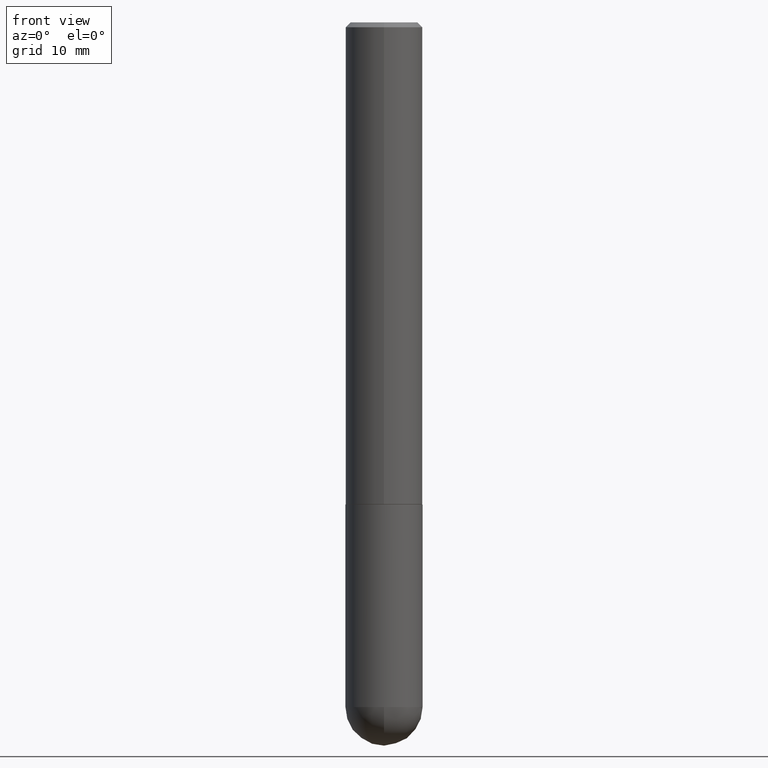
[diagram: clean part render]
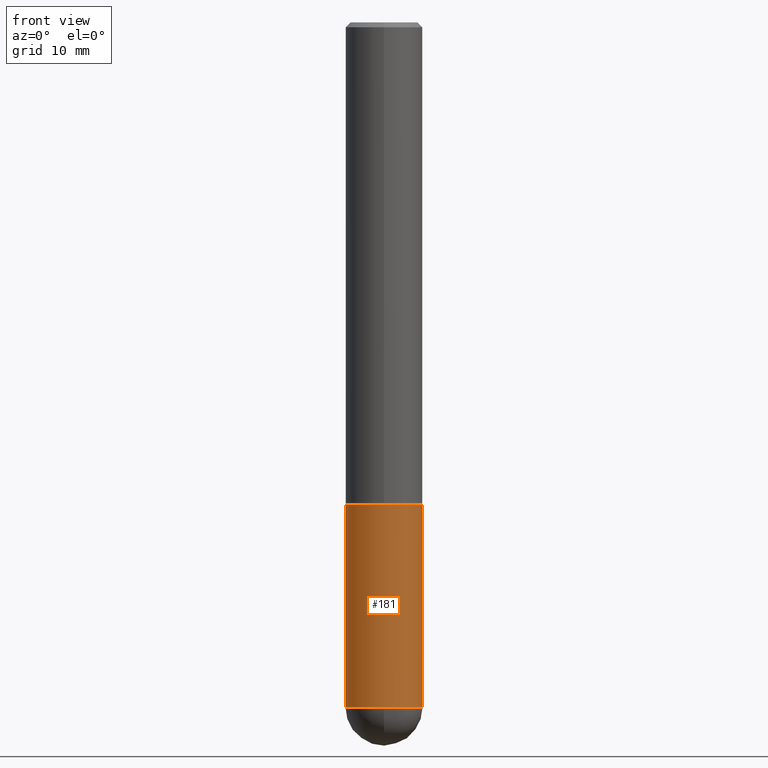
[diagram: same view with one face highlighted and labeled with its STEP entity id]
A machine part, front view. The second image highlights one B-rep face of the part: STEP entity #181.
In plain terms, the highlighted cylindrical surface (partial cylindrical patch) has radius 4.0005 mm, axis along (-0, 0, 1).
Its self-contained STEP definition (entity closure, byte-faithful):
#29 = VECTOR ( 'NONE', #406, 39.37007874015748143 ) ;
#38 = DIRECTION ( 'NONE',  ( -2.445468806185136877E-29, 3.491481338843145188E-15, 1.000000000000000000 ) ) ;
#53 = CARTESIAN_POINT ( 'NONE',  ( -0.1575000000000000011, -7.197254592168330052E-15, -1.968499999999999694 ) ) ;
#60 = AXIS2_PLACEMENT_3D ( 'NONE', #279, #177, #148 ) ;
#68 = CARTESIAN_POINT ( 'NONE',  ( 0.1575000000000000011, -9.416176022726072770E-15, -2.795299999999999674 ) ) ;
#73 = DIRECTION ( 'NONE',  ( -2.445468806185136597E-29, 3.491481338843145583E-15, 1.000000000000000000 ) ) ;
#82 = EDGE_LOOP ( 'NONE', ( #362, #384, #232, #99, #118 ) ) ;
#89 = CIRCLE ( 'NONE', #123, 0.1575000000000000011 ) ;
#99 = ORIENTED_EDGE ( 'NONE', *, *, #159, .T. ) ;
#118 = ORIENTED_EDGE ( 'NONE', *, *, #402, .F. ) ;
#119 = DIRECTION ( 'NONE',  ( -2.445468806185136597E-29, 3.491481338843145583E-15, 1.000000000000000000 ) ) ;
#123 = AXIS2_PLACEMENT_3D ( 'NONE', #285, #119, #319 ) ;
#137 = DIRECTION ( 'NONE',  ( 1.000000000000000000, -6.982962677686265922E-15, 4.876176775795935232E-29 ) ) ;
#144 = DIRECTION ( 'NONE',  ( -2.445468806185136597E-29, 3.491481338843145583E-15, 1.000000000000000000 ) ) ;
#148 = DIRECTION ( 'NONE',  ( 1.000000000000000000, -6.982962677686261977E-15, 0.000000000000000000 ) ) ;
#159 = EDGE_CURVE ( 'NONE', #351, #160, #209, .T. ) ;
#160 = VERTEX_POINT ( 'NONE', #260 ) ;
#168 = CARTESIAN_POINT ( 'NONE',  ( 0.1575000000000000011, -1.099816621735586889E-15, 7.679978421878598033E-30 ) ) ;
#171 = CIRCLE ( 'NONE', #60, 0.1575000000000000011 ) ;
#177 = DIRECTION ( 'NONE',  ( -2.445468806185136597E-29, 3.491481338843145583E-15, 1.000000000000000000 ) ) ;
#181 = ADVANCED_FACE ( 'NONE', ( #365 ), #237, .T. ) ;
#186 = DIRECTION ( 'NONE',  ( 1.000000000000000000, -6.982962677686261977E-15, 0.000000000000000000 ) ) ;
#188 = CARTESIAN_POINT ( 'NONE',  ( -0.1575000000000000011, 1.119104808822157801E-15, -7.747322767151475583E-30 ) ) ;
#192 = CARTESIAN_POINT ( 'NONE',  ( -1.119104808822091931E-15, -0.1575000000000101319, -2.795299999999998786 ) ) ;
#197 = AXIS2_PLACEMENT_3D ( 'NONE', #390, #73, #137 ) ;
#208 = AXIS2_PLACEMENT_3D ( 'NONE', #380, #144, #186 ) ;
#209 = LINE ( 'NONE', #168, #272 ) ;
#216 = CARTESIAN_POINT ( 'NONE',  ( -0.1575000000000000011, -7.197254592168330052E-15, -2.795299999999999674 ) ) ;
#232 = ORIENTED_EDGE ( 'NONE', *, *, #270, .T. ) ;
#237 = CYLINDRICAL_SURFACE ( 'NONE', #197, 0.1575000000000000011 ) ;
#260 = CARTESIAN_POINT ( 'NONE',  ( 0.1575000000000000011, -7.972797637248318399E-15, -1.968499999999999694 ) ) ;
#270 = EDGE_CURVE ( 'NONE', #367, #351, #171, .T. ) ;
#272 = VECTOR ( 'NONE', #38, 39.37007874015748143 ) ;
#279 = CARTESIAN_POINT ( 'NONE',  ( 6.835818953929311707E-29, -9.759737786468243605E-15, -2.795299999999999674 ) ) ;
#285 = CARTESIAN_POINT ( 'NONE',  ( 4.813905344975440714E-29, -6.872981015512730918E-15, -1.968499999999999694 ) ) ;
#289 = VERTEX_POINT ( 'NONE', #216 ) ;
#290 = EDGE_CURVE ( 'NONE', #289, #367, #389, .T. ) ;
#318 = EDGE_CURVE ( 'NONE', #289, #331, #404, .T. ) ;
#319 = DIRECTION ( 'NONE',  ( 1.000000000000000000, -6.982962677686268288E-15, 0.000000000000000000 ) ) ;
#331 = VERTEX_POINT ( 'NONE', #53 ) ;
#351 = VERTEX_POINT ( 'NONE', #68 ) ;
#362 = ORIENTED_EDGE ( 'NONE', *, *, #318, .F. ) ;
#365 = FACE_OUTER_BOUND ( 'NONE', #82, .T. ) ;
#367 = VERTEX_POINT ( 'NONE', #192 ) ;
#380 = CARTESIAN_POINT ( 'NONE',  ( 6.835818953929311707E-29, -9.759737786468243605E-15, -2.795299999999999674 ) ) ;
#384 = ORIENTED_EDGE ( 'NONE', *, *, #290, .T. ) ;
#389 = CIRCLE ( 'NONE', #208, 0.1575000000000000011 ) ;
#390 = CARTESIAN_POINT ( 'NONE',  ( 0.000000000000000000, 0.000000000000000000, 0.000000000000000000 ) ) ;
#402 = EDGE_CURVE ( 'NONE', #331, #160, #89, .T. ) ;
#404 = LINE ( 'NONE', #188, #29 ) ;
#406 = DIRECTION ( 'NONE',  ( -2.445468806185136877E-29, 3.491481338843145188E-15, 1.000000000000000000 ) ) ;